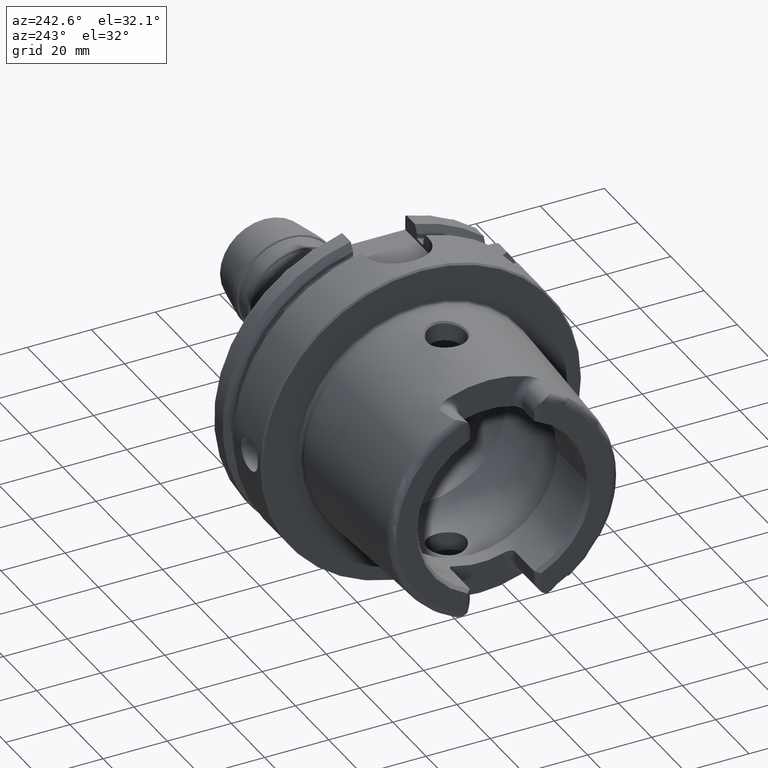
[diagram: clean part render]
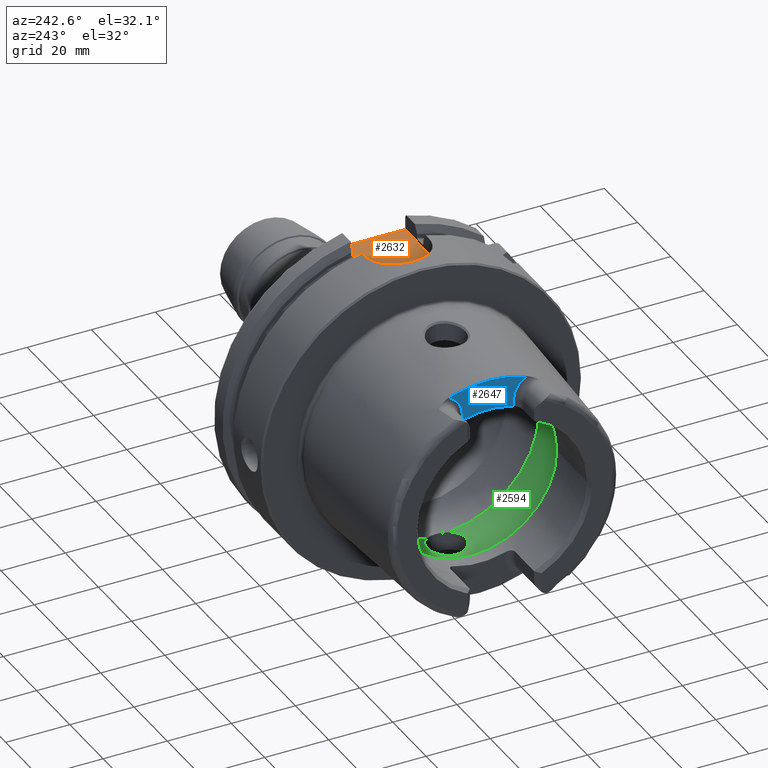
[diagram: same view with three faces highlighted in distinct colors, each labeled with its STEP entity id]
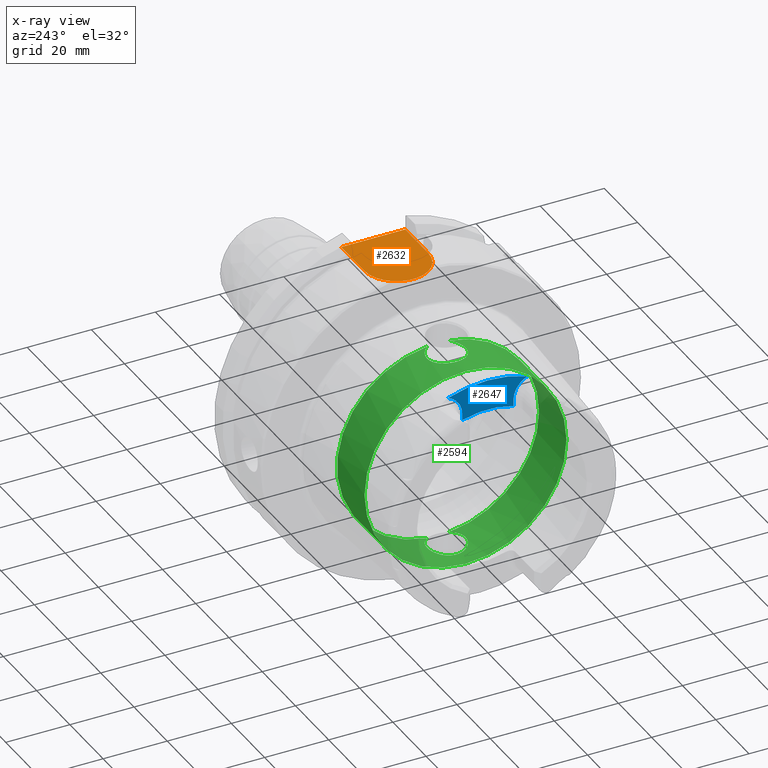
[diagram: x-ray of the same camera — body ghosted, the three highlighted faces saturated]
A machine part, auxiliary view with three faces highlighted in distinct colors.
The next image is the same camera in x-ray (body ghosted, the three faces saturated) — at least one of them is partly hidden behind the body in this view.
Their STEP definitions:

[orange] entity #2632 — the highlighted planar face has unit normal (0, 0, 1).
#131=PLANE('',#2962);
#179=LINE('',#4144,#293);
#258=LINE('',#5452,#372);
#261=LINE('',#5459,#375);
#293=VECTOR('',#3309,10.);
#372=VECTOR('',#3690,10.);
#375=VECTOR('',#3699,10.);
#520=FACE_OUTER_BOUND('',#664,.T.);
#664=EDGE_LOOP('',(#2263,#2264,#2265,#2266));
#882=CIRCLE('',#2960,10.);
#1026=VERTEX_POINT('',#4141);
#1027=VERTEX_POINT('',#4143);
#1197=VERTEX_POINT('',#5451);
#1198=VERTEX_POINT('',#5455);
#1342=EDGE_CURVE('',#1026,#1027,#179,.T.);
#1575=EDGE_CURVE('',#1197,#1027,#258,.T.);
#1577=EDGE_CURVE('',#1198,#1197,#882,.T.);
#1579=EDGE_CURVE('',#1026,#1198,#261,.T.);
#2263=ORIENTED_EDGE('',*,*,#1579,.T.);
#2264=ORIENTED_EDGE('',*,*,#1577,.T.);
#2265=ORIENTED_EDGE('',*,*,#1575,.T.);
#2266=ORIENTED_EDGE('',*,*,#1342,.F.);
#2632=ADVANCED_FACE('',(#520),#131,.T.);
#2960=AXIS2_PLACEMENT_3D('',#5456,#3694,#3695);
#2962=AXIS2_PLACEMENT_3D('',#5460,#3700,#3701);
#3309=DIRECTION('',(0.,-1.,0.));
#3690=DIRECTION('',(1.,7.93016446160826E-17,0.));
#3694=DIRECTION('center_axis',(0.,0.,1.));
#3695=DIRECTION('ref_axis',(0.,1.,0.));
#3699=DIRECTION('',(-1.,0.,0.));
#3700=DIRECTION('center_axis',(0.,0.,1.));
#3701=DIRECTION('ref_axis',(1.,0.,0.));
#4141=CARTESIAN_POINT('',(29.,10.,44.));
#4143=CARTESIAN_POINT('',(29.,-10.,44.));
#4144=CARTESIAN_POINT('',(29.,0.,44.));
#5451=CARTESIAN_POINT('',(15.,-10.,44.));
#5452=CARTESIAN_POINT('',(15.,-10.,44.));
#5455=CARTESIAN_POINT('',(15.,10.,44.));
#5456=CARTESIAN_POINT('Origin',(15.,0.,44.));
#5459=CARTESIAN_POINT('',(29.,10.,44.));
#5460=CARTESIAN_POINT('Origin',(17.,0.,44.));

[blue] entity #2647 — the highlighted planar face has unit normal (-1, 0, 0).
#134=PLANE('',#2990);
#262=LINE('',#5465,#376);
#263=LINE('',#5494,#377);
#376=VECTOR('',#3706,10.);
#377=VECTOR('',#3719,10.);
#535=FACE_OUTER_BOUND('',#679,.T.);
#679=EDGE_LOOP('',(#2322,#2323,#2324,#2325,#2326,#2327));
#836=CIRCLE('',#2875,36.003493987976);
#884=CIRCLE('',#2966,6.88);
#886=CIRCLE('',#2969,6.88);
#896=CIRCLE('',#2991,26.5);
#1100=VERTEX_POINT('',#4629);
#1101=VERTEX_POINT('',#4646);
#1199=VERTEX_POINT('',#5462);
#1200=VERTEX_POINT('',#5464);
#1201=VERTEX_POINT('',#5479);
#1202=VERTEX_POINT('',#5483);
#1436=EDGE_CURVE('',#1100,#1101,#836,.T.);
#1581=EDGE_CURVE('',#1199,#1200,#262,.T.);
#1583=EDGE_CURVE('',#1101,#1199,#884,.T.);
#1585=EDGE_CURVE('',#1201,#1100,#886,.T.);
#1587=EDGE_CURVE('',#1202,#1201,#263,.T.);
#1603=EDGE_CURVE('',#1200,#1202,#896,.T.);
#2322=ORIENTED_EDGE('',*,*,#1583,.F.);
#2323=ORIENTED_EDGE('',*,*,#1436,.F.);
#2324=ORIENTED_EDGE('',*,*,#1585,.F.);
#2325=ORIENTED_EDGE('',*,*,#1587,.F.);
#2326=ORIENTED_EDGE('',*,*,#1603,.F.);
#2327=ORIENTED_EDGE('',*,*,#1581,.F.);
#2647=ADVANCED_FACE('',(#535),#134,.T.);
#2875=AXIS2_PLACEMENT_3D('',#4647,#3475,#3476);
#2966=AXIS2_PLACEMENT_3D('',#5477,#3709,#3710);
#2969=AXIS2_PLACEMENT_3D('',#5481,#3715,#3716);
#2990=AXIS2_PLACEMENT_3D('',#5542,#3762,#3763);
#2991=AXIS2_PLACEMENT_3D('',#5543,#3764,#3765);
#3475=DIRECTION('center_axis',(1.,0.,0.));
#3476=DIRECTION('ref_axis',(0.,1.,0.));
#3706=DIRECTION('',(0.,0.,-1.));
#3709=DIRECTION('center_axis',(-1.,0.,0.));
#3710=DIRECTION('ref_axis',(0.,0.564947834751706,0.82512662301574));
#3715=DIRECTION('center_axis',(-1.,0.,0.));
#3716=DIRECTION('ref_axis',(0.,-0.564947834751705,0.825126623015741));
#3719=DIRECTION('',(0.,0.,1.));
#3762=DIRECTION('center_axis',(-1.,0.,0.));
#3763=DIRECTION('ref_axis',(0.,0.,1.));
#3764=DIRECTION('center_axis',(-1.,0.,0.));
#3765=DIRECTION('ref_axis',(0.,1.,0.));
#4629=CARTESIAN_POINT('',(-40.,12.4227760464511,33.7923987701664));
#4646=CARTESIAN_POINT('',(-40.,-12.4227760464511,33.7923987701664));
#4647=CARTESIAN_POINT('Origin',(-40.,0.,0.));
#5462=CARTESIAN_POINT('',(-40.,-8.01,27.37));
#5464=CARTESIAN_POINT('',(-40.,-8.01,25.2604414054862));
#5465=CARTESIAN_POINT('',(-40.,-8.01,23.5));
#5477=CARTESIAN_POINT('Origin',(-40.,-14.89,27.37));
#5479=CARTESIAN_POINT('',(-40.,8.01,27.37));
#5481=CARTESIAN_POINT('Origin',(-40.,14.89,27.37));
#5483=CARTESIAN_POINT('',(-40.,8.01,25.2604414054862));
#5494=CARTESIAN_POINT('',(-40.,8.01,28.185));
#5542=CARTESIAN_POINT('Origin',(-40.,0.,29.));
#5543=CARTESIAN_POINT('Origin',(-40.,0.,0.));

[green] entity #2594 — the highlighted cylindrical surface (bore or boss wall) has radius 31.5 mm, axis along (-1, 0, 0).
#50=B_SPLINE_CURVE_WITH_KNOTS('',3,(#4707,#4708,#4709,#4710,#4711,#4712,
#4713,#4714,#4715,#4716,#4717,#4718,#4719,#4720,#4721,#4722,#4723,#4724,
#4725,#4726,#4727,#4728,#4729,#4730,#4731,#4732,#4733,#4734,#4735,#4736,
#4737),.UNSPECIFIED.,.F.,.F.,(4,2,2,2,2,2,2,2,2,2,2,3,2,2,4),(-2.38315208047406,
-2.26609494287567,-2.03948128472637,-1.81286762657707,-1.58625396842777,
-1.35964031027847,-1.1330370617835,-0.906433813288535,-0.679830564793567,
-0.453227316298599,-0.226613658149299,0.,0.2266136581493,0.453227316298599,
0.570284453980294),.UNSPECIFIED.);
#55=B_SPLINE_CURVE_WITH_KNOTS('',3,(#4899,#4900,#4901,#4902,#4903,#4904,
#4905,#4906,#4907,#4908,#4909,#4910,#4911,#4912,#4913,#4914,#4915,#4916,
#4917,#4918,#4919,#4920,#4921,#4922,#4923,#4924,#4925,#4926,#4927,#4928,
#4929),.UNSPECIFIED.,.F.,.F.,(4,2,2,3,2,2,2,2,2,2,2,2,2,2,4),(-0.570284453896985,
-0.453227316298598,-0.226613658149299,0.,0.2266136581493,0.453227316298599,
0.679830564793567,0.906433813288535,1.1330370617835,1.35964031027847,1.58625396842777,
1.81286762657707,2.03948128472637,2.26609494287567,2.38315208055736),
 .UNSPECIFIED.);
#216=LINE('',#4947,#330);
#330=VECTOR('',#3492,31.5);
#407=CYLINDRICAL_SURFACE('',#2879,31.5);
#482=FACE_OUTER_BOUND('',#625,.T.);
#625=EDGE_LOOP('',(#2021,#2022,#2023,#2024,#2025,#2026,#2027,#2028,#2029,
#2030));
#838=CIRCLE('',#2880,31.5);
#839=CIRCLE('',#2881,31.5);
#840=CIRCLE('',#2882,31.5);
#841=CIRCLE('',#2883,31.5);
#842=CIRCLE('',#2884,31.5);
#843=CIRCLE('',#2885,31.5);
#1105=VERTEX_POINT('',#4695);
#1106=VERTEX_POINT('',#4706);
#1109=VERTEX_POINT('',#4886);
#1111=VERTEX_POINT('',#4898);
#1113=VERTEX_POINT('',#4944);
#1114=VERTEX_POINT('',#4946);
#1115=VERTEX_POINT('',#4948);
#1116=VERTEX_POINT('',#4950);
#1443=EDGE_CURVE('',#1106,#1105,#50,.T.);
#1449=EDGE_CURVE('',#1111,#1109,#55,.T.);
#1453=EDGE_CURVE('',#1113,#1109,#838,.T.);
#1454=EDGE_CURVE('',#1113,#1114,#216,.T.);
#1455=EDGE_CURVE('',#1114,#1115,#839,.T.);
#1456=EDGE_CURVE('',#1115,#1116,#840,.T.);
#1457=EDGE_CURVE('',#1116,#1114,#841,.T.);
#1458=EDGE_CURVE('',#1106,#1113,#842,.T.);
#1459=EDGE_CURVE('',#1111,#1105,#843,.T.);
#2021=ORIENTED_EDGE('',*,*,#1449,.T.);
#2022=ORIENTED_EDGE('',*,*,#1453,.F.);
#2023=ORIENTED_EDGE('',*,*,#1454,.T.);
#2024=ORIENTED_EDGE('',*,*,#1455,.T.);
#2025=ORIENTED_EDGE('',*,*,#1456,.T.);
#2026=ORIENTED_EDGE('',*,*,#1457,.T.);
#2027=ORIENTED_EDGE('',*,*,#1454,.F.);
#2028=ORIENTED_EDGE('',*,*,#1458,.F.);
#2029=ORIENTED_EDGE('',*,*,#1443,.T.);
#2030=ORIENTED_EDGE('',*,*,#1459,.F.);
#2594=ADVANCED_FACE('',(#482),#407,.F.);
#2879=AXIS2_PLACEMENT_3D('',#4943,#3488,#3489);
#2880=AXIS2_PLACEMENT_3D('',#4945,#3490,#3491);
#2881=AXIS2_PLACEMENT_3D('',#4949,#3493,#3494);
#2882=AXIS2_PLACEMENT_3D('',#4951,#3495,#3496);
#2883=AXIS2_PLACEMENT_3D('',#4952,#3497,#3498);
#2884=AXIS2_PLACEMENT_3D('',#4953,#3499,#3500);
#2885=AXIS2_PLACEMENT_3D('',#4954,#3501,#3502);
#3488=DIRECTION('center_axis',(-1.,0.,0.));
#3489=DIRECTION('ref_axis',(0.,1.,0.));
#3490=DIRECTION('center_axis',(-1.,0.,0.));
#3491=DIRECTION('ref_axis',(0.,0.,1.));
#3492=DIRECTION('',(-1.,0.,0.));
#3493=DIRECTION('center_axis',(-1.,0.,0.));
#3494=DIRECTION('ref_axis',(0.,0.,1.));
#3495=DIRECTION('center_axis',(-1.,0.,0.));
#3496=DIRECTION('ref_axis',(0.,0.,1.));
#3497=DIRECTION('center_axis',(-1.,0.,0.));
#3498=DIRECTION('ref_axis',(0.,0.,1.));
#3499=DIRECTION('center_axis',(-1.,0.,0.));
#3500=DIRECTION('ref_axis',(0.,0.,1.));
#3501=DIRECTION('center_axis',(-1.,0.,0.));
#3502=DIRECTION('ref_axis',(0.,0.,1.));
#4695=CARTESIAN_POINT('',(-10.,3.31662479035542,-31.3249102153542));
#4706=CARTESIAN_POINT('',(-10.,-3.31662479035542,-31.3249102153542));
#4707=CARTESIAN_POINT('Ctrl Pts',(-10.,-3.31662479035541,-31.3249102153542));
#4708=CARTESIAN_POINT('Ctrl Pts',(-10.2254184154804,-3.65645583807581,-31.2889295191717));
#4709=CARTESIAN_POINT('Ctrl Pts',(-10.482718625598,-3.96799999983657,-31.2503087518862));
#4710=CARTESIAN_POINT('Ctrl Pts',(-11.289042660848,-4.77432403508655,-31.140708727458));
#4711=CARTESIAN_POINT('Ctrl Pts',(-11.9624834305428,-5.23577180141274,-31.0633803744766));
#4712=CARTESIAN_POINT('Ctrl Pts',(-13.4401908644727,-5.84865855662958,-30.9538382316308));
#4713=CARTESIAN_POINT('Ctrl Pts',(-14.2446211395023,-6.00000000000001,-30.9232921921325));
#4714=CARTESIAN_POINT('Ctrl Pts',(-15.7553788604977,-6.00000000000001,-30.9232921921325));
#4715=CARTESIAN_POINT('Ctrl Pts',(-16.5598091355273,-5.84865855662958,-30.9538382316308));
#4716=CARTESIAN_POINT('Ctrl Pts',(-18.0375165694572,-5.23577180141275,-31.0633803744766));
#4717=CARTESIAN_POINT('Ctrl Pts',(-18.710957339152,-4.77432403508655,-31.140708727458));
#4718=CARTESIAN_POINT('Ctrl Pts',(-19.7742996118461,-3.71098176239249,-31.2852440928545));
#4719=CARTESIAN_POINT('Ctrl Pts',(-20.2357665181958,-3.03753058698362,-31.3619556484746));
#4720=CARTESIAN_POINT('Ctrl Pts',(-20.8486671603361,-1.55978711209124,-31.4700797313679));
#4721=CARTESIAN_POINT('Ctrl Pts',(-21.,-0.755344161649895,-31.5));
#4722=CARTESIAN_POINT('Ctrl Pts',(-21.,0.755344161649892,-31.5));
#4723=CARTESIAN_POINT('Ctrl Pts',(-20.8486671603361,1.55978711209124,-31.4700797313679));
#4724=CARTESIAN_POINT('Ctrl Pts',(-20.2357665181958,3.03753058698362,-31.3619556484746));
#4725=CARTESIAN_POINT('Ctrl Pts',(-19.7742996118461,3.71098176239249,-31.2852440928545));
#4726=CARTESIAN_POINT('Ctrl Pts',(-18.710957339152,4.77432403508655,-31.140708727458));
#4727=CARTESIAN_POINT('Ctrl Pts',(-18.0375165694572,5.23577180141274,-31.0633803744766));
#4728=CARTESIAN_POINT('Ctrl Pts',(-16.5598091355273,5.84865855662958,-30.9538382316308));
#4729=CARTESIAN_POINT('Ctrl Pts',(-15.7553788604977,6.00000000000001,-30.9232921921325));
#4730=CARTESIAN_POINT('Ctrl Pts',(-15.,6.00000000000001,-30.9232921921325));
#4731=CARTESIAN_POINT('Ctrl Pts',(-14.2446211395023,6.00000000000001,-30.9232921921325));
#4732=CARTESIAN_POINT('Ctrl Pts',(-13.4401908644727,5.84865855662958,-30.9538382316308));
#4733=CARTESIAN_POINT('Ctrl Pts',(-11.9624834305428,5.23577180141274,-31.0633803744766));
#4734=CARTESIAN_POINT('Ctrl Pts',(-11.289042660848,4.77432403508655,-31.140708727458));
#4735=CARTESIAN_POINT('Ctrl Pts',(-10.4827186254025,3.96799999964111,-31.2503087519128));
#4736=CARTESIAN_POINT('Ctrl Pts',(-10.2254184154949,3.65645583809765,-31.2889295191694));
#4737=CARTESIAN_POINT('Ctrl Pts',(-10.,3.31662479035541,-31.3249102153542));
#4886=CARTESIAN_POINT('',(-10.,-3.31662479035542,31.3249102153542));
#4898=CARTESIAN_POINT('',(-10.,3.31662479035542,31.3249102153542));
#4899=CARTESIAN_POINT('Ctrl Pts',(-10.,3.31662479035542,31.3249102153542));
#4900=CARTESIAN_POINT('Ctrl Pts',(-10.2254184154804,3.65645583807582,31.2889295191717));
#4901=CARTESIAN_POINT('Ctrl Pts',(-10.482718625598,3.96799999983657,31.2503087518862));
#4902=CARTESIAN_POINT('Ctrl Pts',(-11.289042660848,4.77432403508655,31.140708727458));
#4903=CARTESIAN_POINT('Ctrl Pts',(-11.9624834305428,5.23577180141274,31.0633803744766));
#4904=CARTESIAN_POINT('Ctrl Pts',(-13.4401908644727,5.84865855662958,30.9538382316308));
#4905=CARTESIAN_POINT('Ctrl Pts',(-14.2446211395023,6.00000000000001,30.9232921921325));
#4906=CARTESIAN_POINT('Ctrl Pts',(-15.,6.00000000000001,30.9232921921325));
#4907=CARTESIAN_POINT('Ctrl Pts',(-15.7553788604977,6.00000000000001,30.9232921921325));
#4908=CARTESIAN_POINT('Ctrl Pts',(-16.5598091355273,5.84865855662958,30.9538382316308));
#4909=CARTESIAN_POINT('Ctrl Pts',(-18.0375165694572,5.23577180141274,31.0633803744766));
#4910=CARTESIAN_POINT('Ctrl Pts',(-18.710957339152,4.77432403508655,31.140708727458));
#4911=CARTESIAN_POINT('Ctrl Pts',(-19.7742996118461,3.71098176239249,31.2852440928545));
#4912=CARTESIAN_POINT('Ctrl Pts',(-20.2357665181958,3.03753058698362,31.3619556484746));
#4913=CARTESIAN_POINT('Ctrl Pts',(-20.8486671603361,1.55978711209124,31.4700797313679));
#4914=CARTESIAN_POINT('Ctrl Pts',(-21.,0.755344161649892,31.5));
#4915=CARTESIAN_POINT('Ctrl Pts',(-21.,-0.755344161649894,31.5));
#4916=CARTESIAN_POINT('Ctrl Pts',(-20.8486671603361,-1.55978711209124,31.4700797313679));
#4917=CARTESIAN_POINT('Ctrl Pts',(-20.2357665181958,-3.03753058698362,31.3619556484746));
#4918=CARTESIAN_POINT('Ctrl Pts',(-19.7742996118461,-3.71098176239249,31.2852440928545));
#4919=CARTESIAN_POINT('Ctrl Pts',(-18.710957339152,-4.77432403508655,31.140708727458));
#4920=CARTESIAN_POINT('Ctrl Pts',(-18.0375165694572,-5.23577180141274,31.0633803744766));
#4921=CARTESIAN_POINT('Ctrl Pts',(-16.5598091355273,-5.84865855662958,30.9538382316308));
#4922=CARTESIAN_POINT('Ctrl Pts',(-15.7553788604977,-6.00000000000001,30.9232921921325));
#4923=CARTESIAN_POINT('Ctrl Pts',(-14.2446211395023,-6.00000000000001,30.9232921921325));
#4924=CARTESIAN_POINT('Ctrl Pts',(-13.4401908644727,-5.84865855662958,30.9538382316308));
#4925=CARTESIAN_POINT('Ctrl Pts',(-11.9624834305428,-5.23577180141274,31.0633803744766));
#4926=CARTESIAN_POINT('Ctrl Pts',(-11.289042660848,-4.77432403508655,31.140708727458));
#4927=CARTESIAN_POINT('Ctrl Pts',(-10.4827186254025,-3.96799999964111,31.2503087519128));
#4928=CARTESIAN_POINT('Ctrl Pts',(-10.2254184154949,-3.65645583809765,31.2889295191694));
#4929=CARTESIAN_POINT('Ctrl Pts',(-10.,-3.31662479035542,31.3249102153542));
#4943=CARTESIAN_POINT('Origin',(-18.2696370289182,0.,0.));
#4944=CARTESIAN_POINT('',(-10.,-31.5,3.85763741731416E-15));
#4945=CARTESIAN_POINT('Origin',(-10.,0.,0.));
#4946=CARTESIAN_POINT('',(-26.5392740578363,-31.5,3.85763741731416E-15));
#4947=CARTESIAN_POINT('',(-18.2696370289182,-31.5,3.85763741731416E-15));
#4948=CARTESIAN_POINT('',(-26.5392740578363,31.5,0.));
#4949=CARTESIAN_POINT('Origin',(-26.5392740578363,0.,0.));
#4950=CARTESIAN_POINT('',(-26.5392740578363,-3.85763741731416E-15,-31.5));
#4951=CARTESIAN_POINT('Origin',(-26.5392740578363,0.,0.));
#4952=CARTESIAN_POINT('Origin',(-26.5392740578363,0.,0.));
#4953=CARTESIAN_POINT('Origin',(-10.,0.,0.));
#4954=CARTESIAN_POINT('Origin',(-10.,0.,0.));